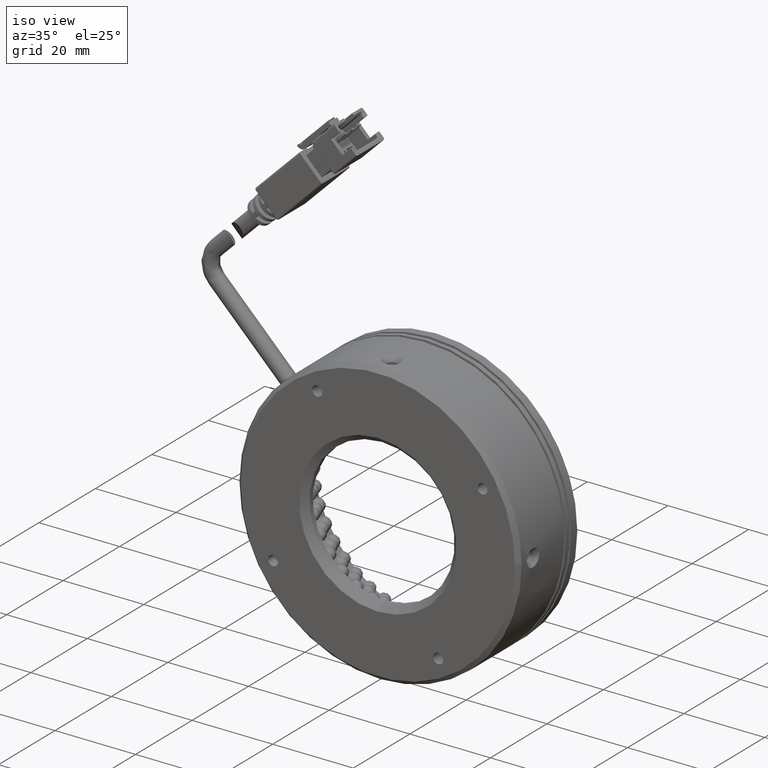
[diagram: clean part render]
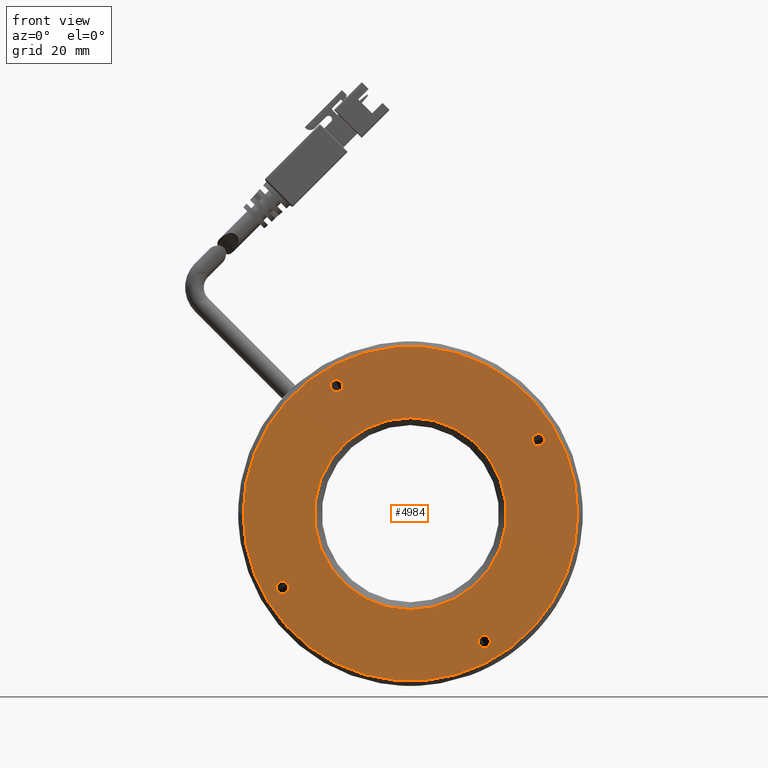
[diagram: tour spotlight — one face highlighted and labeled with its STEP entity id]
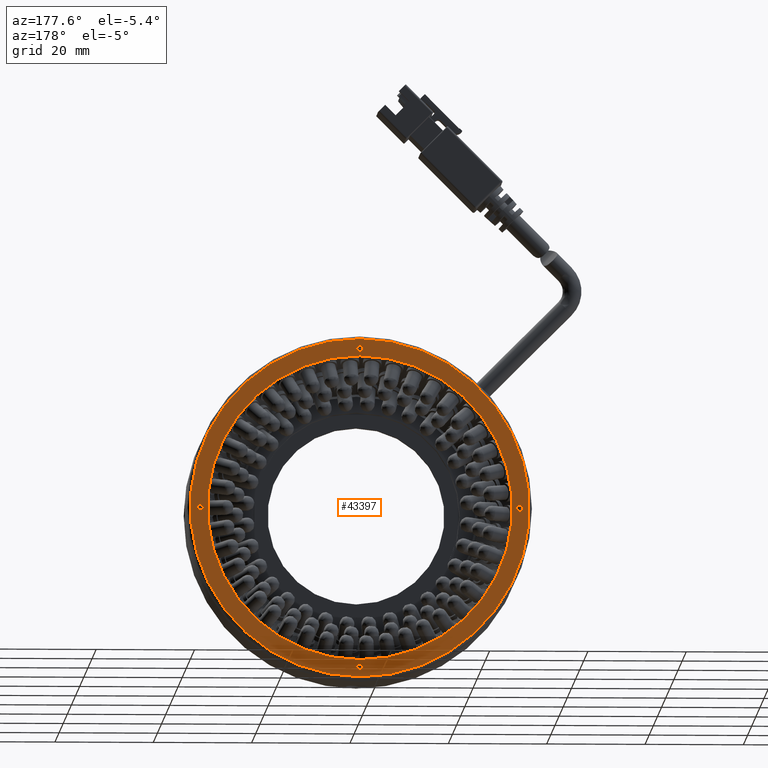
[diagram: tour spotlight — one face highlighted and labeled with its STEP entity id]
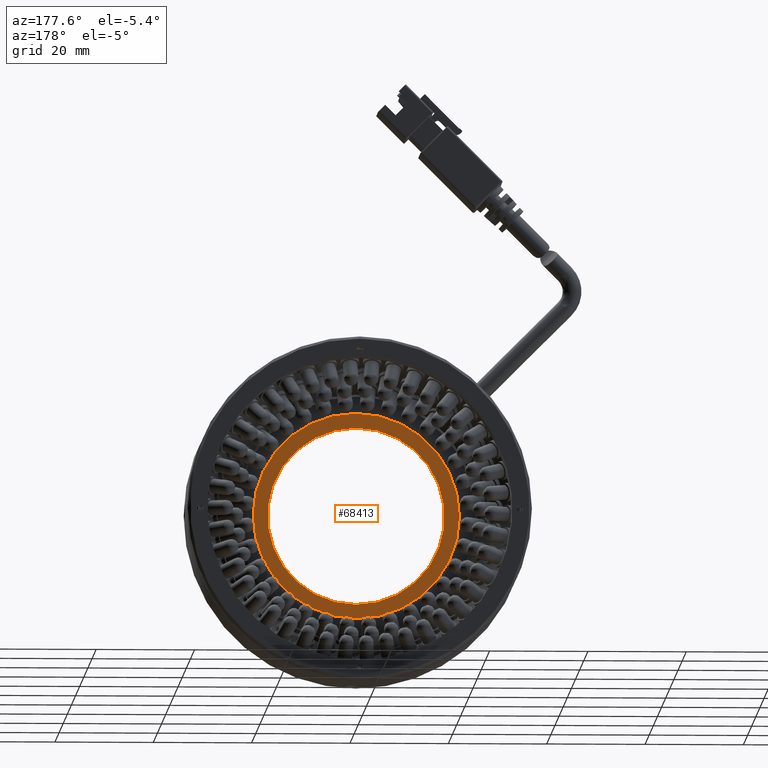
[diagram: tour spotlight — one face highlighted and labeled with its STEP entity id]
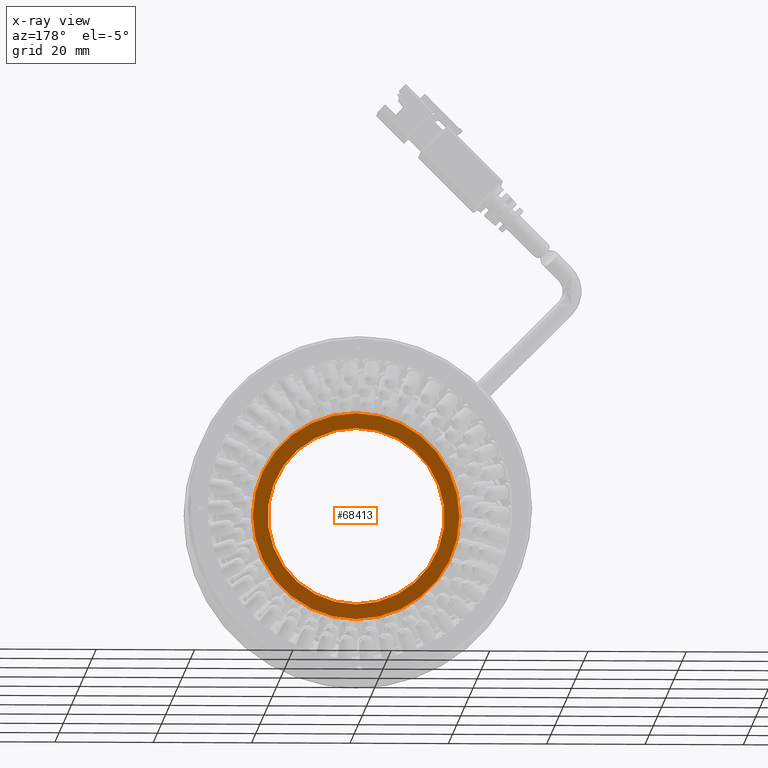
[diagram: x-ray of the same camera — body ghosted, this tour face saturated]
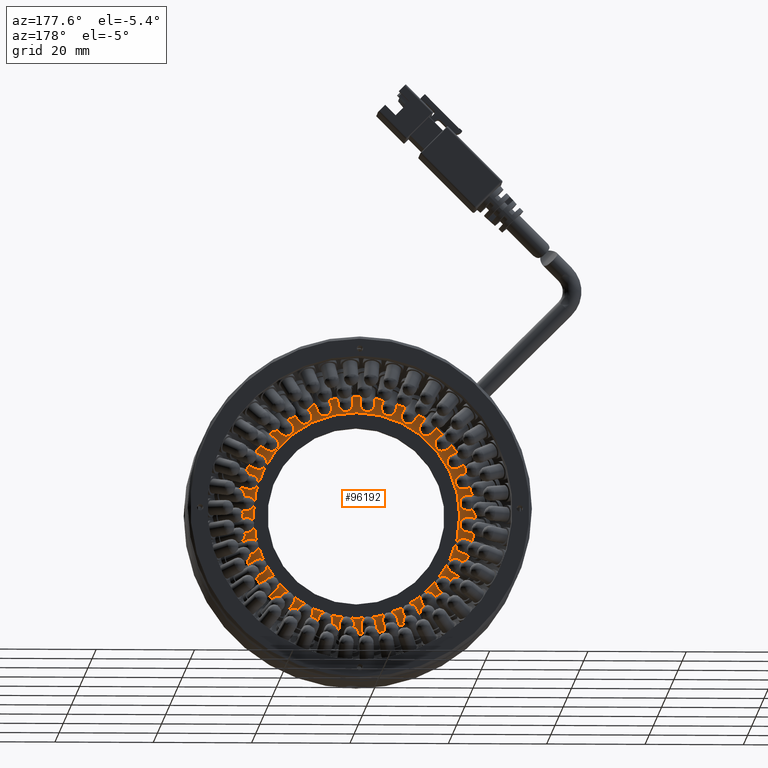
[diagram: tour spotlight — one face highlighted and labeled with its STEP entity id]
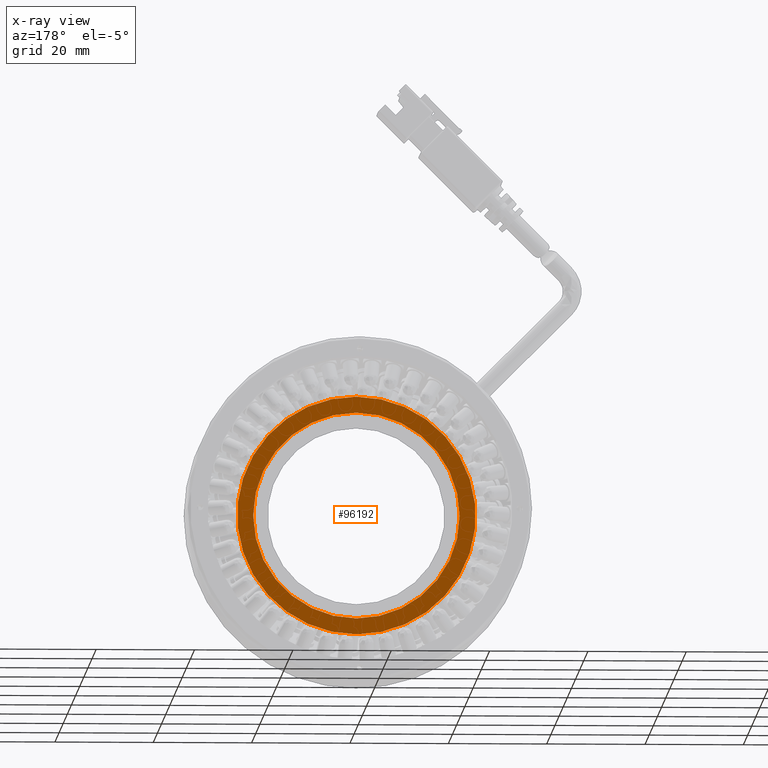
[diagram: x-ray of the same camera — body ghosted, this tour face saturated]
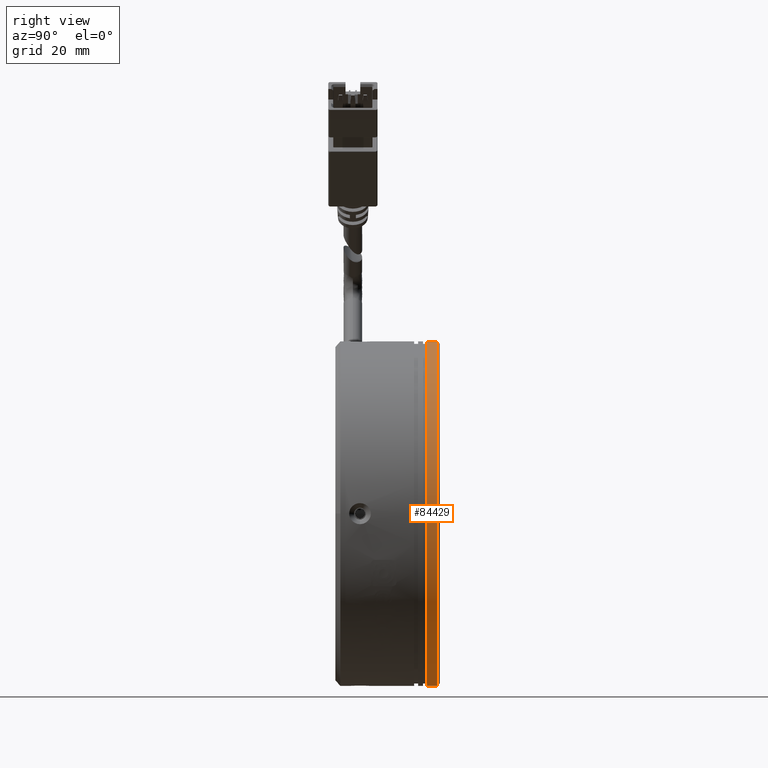
[diagram: tour spotlight — one face highlighted and labeled with its STEP entity id]
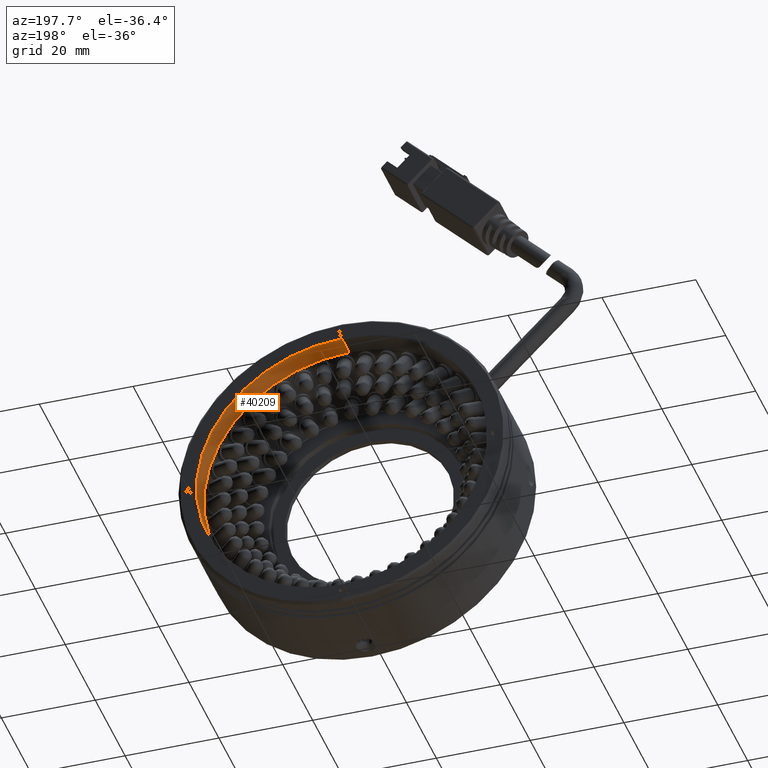
[diagram: tour spotlight — one face highlighted and labeled with its STEP entity id]
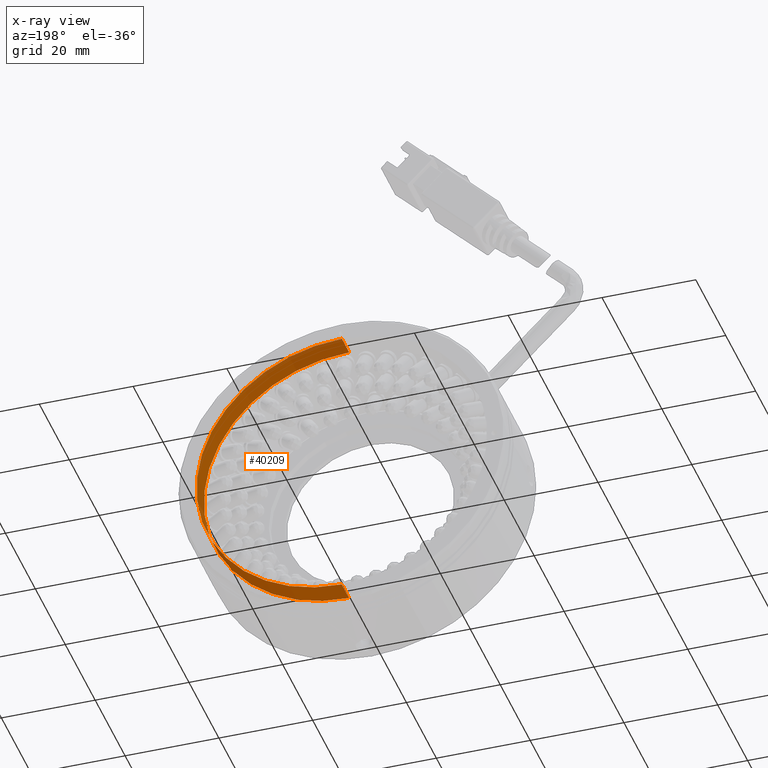
[diagram: x-ray of the same camera — body ghosted, this tour face saturated]
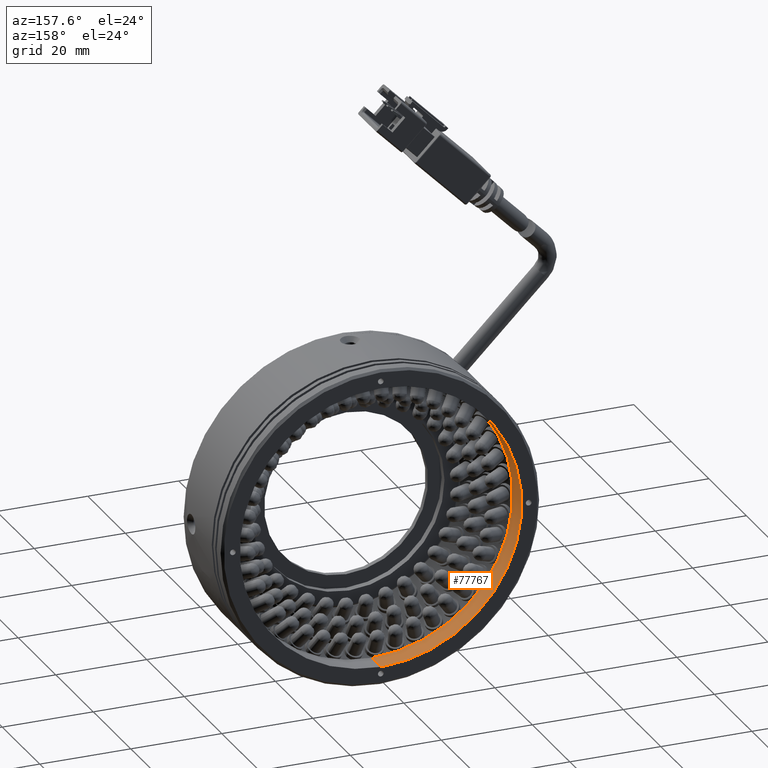
[diagram: tour spotlight — one face highlighted and labeled with its STEP entity id]
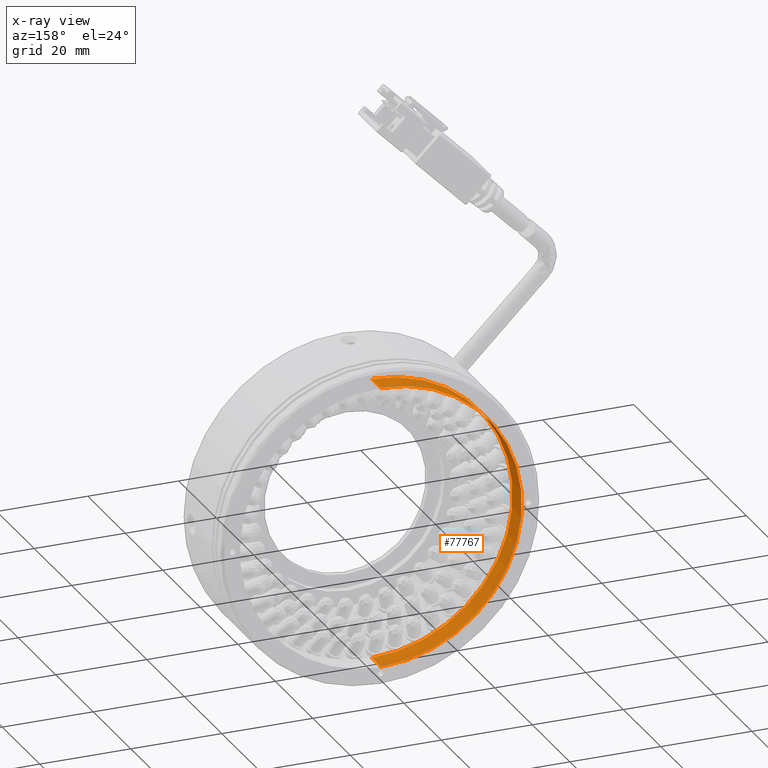
[diagram: x-ray of the same camera — body ghosted, this tour face saturated]
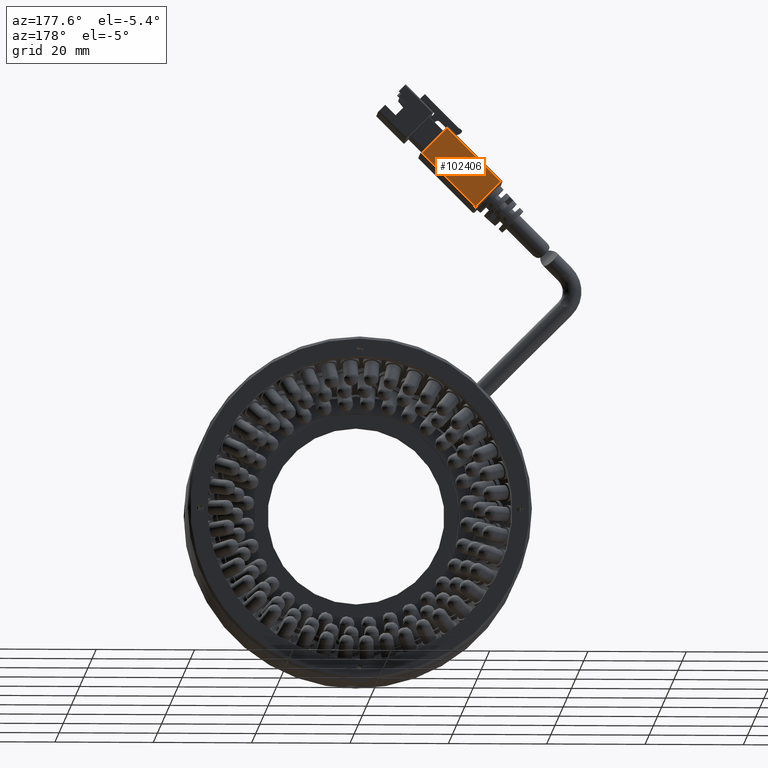
[diagram: tour spotlight — one face highlighted and labeled with its STEP entity id]
A machine part: a face-by-face anatomy tour. The part has 2275 B-rep faces; the first image is the clean iso view, then the 8 largest visible faces are spotlighted one at a time (largest first), each with its STEP entity span.

Face 1 — front view, entity #4984. In plain terms, the highlighted planar face has unit normal (0, 1, 0).
Definition (entity closure, byte-faithful):
#367 = DIRECTION ( 'NONE',  ( 0.0000000000000000000, 1.000000000000000000, 0.0000000000000000000 ) ) ;
#393 = AXIS2_PLACEMENT_3D ( 'NONE', #73693, #72542, #71734 ) ;
#1452 = CIRCLE ( 'NONE', #10676, 1.249999999999994200 ) ;
#1920 = ORIENTED_EDGE ( 'NONE', *, *, #40931, .F. ) ;
#3413 = VERTEX_POINT ( 'NONE', #66374 ) ;
#3608 = EDGE_CURVE ( 'NONE', #83155, #38420, #40416, .T. ) ;
#4984 = ADVANCED_FACE ( 'NONE', ( #56439, #77790, #99244, #35047, #13627, #101733 ), #35180, .F. ) ;
#5630 = DIRECTION ( 'NONE',  ( 0.0000000000000000000, -1.000000000000000000, 0.0000000000000000000 ) ) ;
#5923 = ORIENTED_EDGE ( 'NONE', *, *, #24697, .F. ) ;
#7388 = VERTEX_POINT ( 'NONE', #63766 ) ;
#8421 = AXIS2_PLACEMENT_3D ( 'NONE', #16765, #72929, #24836 ) ;
#8676 = VERTEX_POINT ( 'NONE', #90584 ) ;
#10533 = CARTESIAN_POINT ( 'NONE',  ( -22.22376356038446600, -26.73693679055957900, -39.08318759848835800 ) ) ;
#10676 = AXIS2_PLACEMENT_3D ( 'NONE', #10533, #66751, #18667 ) ;
#13627 = FACE_OUTER_BOUND ( 'NONE', #38674, .T. ) ;
#13849 = VERTEX_POINT ( 'NONE', #69585 ) ;
#15088 = VERTEX_POINT ( 'NONE', #35109 ) ;
#16110 = EDGE_CURVE ( 'NONE', #13849, #3413, #18190, .T. ) ;
#16765 = CARTESIAN_POINT ( 'NONE',  ( -37.22376356038467500, -26.73693679055958200, -13.10242548495533300 ) ) ;
#17733 = EDGE_LOOP ( 'NONE', ( #56339, #63841 ) ) ;
#18190 = CIRCLE ( 'NONE', #34743, 34.00000000000004300 ) ;
#18667 = DIRECTION ( 'NONE',  ( 0.0000000000000000000, 0.0000000000000000000, -1.000000000000000000 ) ) ;
#19959 = ORIENTED_EDGE ( 'NONE', *, *, #16110, .F. ) ;
#20927 = EDGE_CURVE ( 'NONE', #38813, #67836, #101662, .T. ) ;
#24697 = EDGE_CURVE ( 'NONE', #38420, #83155, #73603, .T. ) ;
#24836 = DIRECTION ( 'NONE',  ( 0.0000000000000000000, 0.0000000000000000000, -1.000000000000000000 ) ) ;
#26878 = EDGE_CURVE ( 'NONE', #92964, #15088, #54555, .T. ) ;
#27176 = ORIENTED_EDGE ( 'NONE', *, *, #82742, .F. ) ;
#28119 = EDGE_LOOP ( 'NONE', ( #51162, #5923 ) ) ;
#30036 = CARTESIAN_POINT ( 'NONE',  ( -37.22376356038467500, -26.73693679055958200, -13.10242548495533300 ) ) ;
#31199 = CARTESIAN_POINT ( 'NONE',  ( -63.20452567391775000, -26.73693679055957900, -28.10242548495545400 ) ) ;
#31885 = EDGE_CURVE ( 'NONE', #7388, #8676, #1452, .T. ) ;
#32946 = VERTEX_POINT ( 'NONE', #88738 ) ;
#34377 = DIRECTION ( 'NONE',  ( 0.0000000000000000000, -0.0000000000000000000, 1.000000000000000000 ) ) ;
#34473 = CARTESIAN_POINT ( 'NONE',  ( -55.22376356038467500, -26.73693679055958200, -13.10242548495533300 ) ) ;
#34743 = AXIS2_PLACEMENT_3D ( 'NONE', #89345, #89204, #88995 ) ;
#35047 = FACE_BOUND ( 'NONE', #17733, .T. ) ;
#35109 = CARTESIAN_POINT ( 'NONE',  ( -37.22376356038467500, -26.73693679055958200, -32.60242548495536100 ) ) ;
#35180 = PLANE ( 'NONE',  #76830 ) ;
#36111 = CARTESIAN_POINT ( 'NONE',  ( -52.22376356038507300, -26.73693679055957900, 12.87833662857758900 ) ) ;
#37275 = DIRECTION ( 'NONE',  ( -0.0000000000000000000, -1.000000000000000000, -0.0000000000000000000 ) ) ;
#37617 = ORIENTED_EDGE ( 'NONE', *, *, #52392, .F. ) ;
#38141 = DIRECTION ( 'NONE',  ( -1.000000000000000000, 0.0000000000000000000, 0.0000000000000000000 ) ) ;
#38420 = VERTEX_POINT ( 'NONE', #66078 ) ;
#38674 = EDGE_LOOP ( 'NONE', ( #19959, #70181 ) ) ;
#38714 = CARTESIAN_POINT ( 'NONE',  ( -22.22376356038446600, -26.73693679055957900, -39.08318759848835800 ) ) ;
#38813 = VERTEX_POINT ( 'NONE', #80460 ) ;
#38878 = CARTESIAN_POINT ( 'NONE',  ( -52.22376356038507300, -26.73693679055957900, 14.12833662857758400 ) ) ;
#39184 = VERTEX_POINT ( 'NONE', #38878 ) ;
#39200 = AXIS2_PLACEMENT_3D ( 'NONE', #93157, #44962, #101235 ) ;
#39285 = DIRECTION ( 'NONE',  ( 0.0000000000000000000, 0.0000000000000000000, -1.000000000000000000 ) ) ;
#39358 = CARTESIAN_POINT ( 'NONE',  ( -52.22376356038507300, -26.73693679055957900, 12.87833662857758900 ) ) ;
#40416 = CIRCLE ( 'NONE', #393, 1.249999999999994200 ) ;
#40931 = EDGE_CURVE ( 'NONE', #67836, #38813, #88096, .T. ) ;
#44146 = DIRECTION ( 'NONE',  ( 0.0000000000000000000, 0.0000000000000000000, -1.000000000000000000 ) ) ;
#44962 = DIRECTION ( 'NONE',  ( -0.0000000000000000000, -1.000000000000000000, -0.0000000000000000000 ) ) ;
#45963 = AXIS2_PLACEMENT_3D ( 'NONE', #39358, #95568, #47420 ) ;
#46739 = DIRECTION ( 'NONE',  ( 0.0000000000000000000, 0.0000000000000000000, -1.000000000000000000 ) ) ;
#47420 = DIRECTION ( 'NONE',  ( 0.0000000000000000000, 0.0000000000000000000, -1.000000000000000000 ) ) ;
#51162 = ORIENTED_EDGE ( 'NONE', *, *, #3608, .F. ) ;
#52392 = EDGE_CURVE ( 'NONE', #15088, #92964, #57443, .T. ) ;
#53838 = CARTESIAN_POINT ( 'NONE',  ( -37.22376356038467500, -26.73693679055958200, -13.10242548495533300 ) ) ;
#54555 = CIRCLE ( 'NONE', #102763, 19.50000000000002500 ) ;
#56026 = EDGE_CURVE ( 'NONE', #39184, #32946, #57539, .T. ) ;
#56339 = ORIENTED_EDGE ( 'NONE', *, *, #95933, .F. ) ;
#56439 = FACE_BOUND ( 'NONE', #68803, .T. ) ;
#57256 = AXIS2_PLACEMENT_3D ( 'NONE', #31199, #87428, #39285 ) ;
#57443 = CIRCLE ( 'NONE', #8421, 19.50000000000002500 ) ;
#57539 = CIRCLE ( 'NONE', #45963, 1.249999999999994200 ) ;
#60259 = ORIENTED_EDGE ( 'NONE', *, *, #26878, .F. ) ;
#61898 = DIRECTION ( 'NONE',  ( 0.0000000000000000000, 0.0000000000000000000, -1.000000000000000000 ) ) ;
#62980 = EDGE_LOOP ( 'NONE', ( #37617, #60259 ) ) ;
#63766 = CARTESIAN_POINT ( 'NONE',  ( -22.22376356038446600, -26.73693679055957900, -37.83318759848836500 ) ) ;
#63841 = ORIENTED_EDGE ( 'NONE', *, *, #56026, .F. ) ;
#66078 = CARTESIAN_POINT ( 'NONE',  ( -11.24300144685170000, -26.73693679055957900, 3.147574515044965400 ) ) ;
#66374 = CARTESIAN_POINT ( 'NONE',  ( -3.223763560384632000, -26.73693679055958200, -13.10242548495532900 ) ) ;
#66751 = DIRECTION ( 'NONE',  ( -0.0000000000000000000, -1.000000000000000000, -0.0000000000000000000 ) ) ;
#67836 = VERTEX_POINT ( 'NONE', #88274 ) ;
#68803 = EDGE_LOOP ( 'NONE', ( #96254, #1920 ) ) ;
#69585 = CARTESIAN_POINT ( 'NONE',  ( -71.22376356038472500, -26.73693679055958200, -13.10242548495533300 ) ) ;
#70181 = ORIENTED_EDGE ( 'NONE', *, *, #74240, .F. ) ;
#71734 = DIRECTION ( 'NONE',  ( 0.0000000000000000000, 0.0000000000000000000, -1.000000000000000000 ) ) ;
#72542 = DIRECTION ( 'NONE',  ( -0.0000000000000000000, -1.000000000000000000, -0.0000000000000000000 ) ) ;
#72929 = DIRECTION ( 'NONE',  ( 0.0000000000000000000, -1.000000000000000000, 0.0000000000000000000 ) ) ;
#73603 = CIRCLE ( 'NONE', #39200, 1.249999999999994200 ) ;
#73693 = CARTESIAN_POINT ( 'NONE',  ( -11.24300144685170000, -26.73693679055957900, 1.897574515044971000 ) ) ;
#74240 = EDGE_CURVE ( 'NONE', #3413, #13849, #83731, .T. ) ;
#76830 = AXIS2_PLACEMENT_3D ( 'NONE', #34473, #367, #34377 ) ;
#77790 = FACE_BOUND ( 'NONE', #102990, .T. ) ;
#80460 = CARTESIAN_POINT ( 'NONE',  ( -63.20452567391775000, -26.73693679055957900, -29.35242548495545000 ) ) ;
#82742 = EDGE_CURVE ( 'NONE', #8676, #7388, #103603, .T. ) ;
#82776 = AXIS2_PLACEMENT_3D ( 'NONE', #38714, #94892, #46739 ) ;
#83155 = VERTEX_POINT ( 'NONE', #93412 ) ;
#83200 = AXIS2_PLACEMENT_3D ( 'NONE', #36111, #92344, #44146 ) ;
#83731 = CIRCLE ( 'NONE', #98347, 34.00000000000004300 ) ;
#85361 = CIRCLE ( 'NONE', #83200, 1.249999999999994200 ) ;
#85378 = CARTESIAN_POINT ( 'NONE',  ( -63.20452567391775000, -26.73693679055957900, -28.10242548495545400 ) ) ;
#86260 = DIRECTION ( 'NONE',  ( 2.478176394252581700E-017, 1.000000000000000000, 0.0000000000000000000 ) ) ;
#87428 = DIRECTION ( 'NONE',  ( -0.0000000000000000000, -1.000000000000000000, -0.0000000000000000000 ) ) ;
#88096 = CIRCLE ( 'NONE', #57256, 1.249999999999994200 ) ;
#88274 = CARTESIAN_POINT ( 'NONE',  ( -63.20452567391775000, -26.73693679055957900, -26.85242548495546100 ) ) ;
#88738 = CARTESIAN_POINT ( 'NONE',  ( -52.22376356038507300, -26.73693679055957900, 11.62833662857759600 ) ) ;
#88995 = DIRECTION ( 'NONE',  ( -1.000000000000000000, 0.0000000000000000000, 0.0000000000000000000 ) ) ;
#89204 = DIRECTION ( 'NONE',  ( 2.478176394252581700E-017, 1.000000000000000000, 0.0000000000000000000 ) ) ;
#89345 = CARTESIAN_POINT ( 'NONE',  ( -37.22376356038467500, -26.73693679055958200, -13.10242548495533300 ) ) ;
#90059 = CARTESIAN_POINT ( 'NONE',  ( -37.22376356038467500, -26.73693679055958200, 6.397574515044687400 ) ) ;
#90584 = CARTESIAN_POINT ( 'NONE',  ( -22.22376356038446600, -26.73693679055957900, -40.33318759848835800 ) ) ;
#92344 = DIRECTION ( 'NONE',  ( -0.0000000000000000000, -1.000000000000000000, -0.0000000000000000000 ) ) ;
#92964 = VERTEX_POINT ( 'NONE', #90059 ) ;
#93157 = CARTESIAN_POINT ( 'NONE',  ( -11.24300144685170000, -26.73693679055957900, 1.897574515044971000 ) ) ;
#93412 = CARTESIAN_POINT ( 'NONE',  ( -11.24300144685170000, -26.73693679055957900, 0.6475745150449768700 ) ) ;
#93454 = DIRECTION ( 'NONE',  ( 0.0000000000000000000, 0.0000000000000000000, -1.000000000000000000 ) ) ;
#94892 = DIRECTION ( 'NONE',  ( -0.0000000000000000000, -1.000000000000000000, -0.0000000000000000000 ) ) ;
#95568 = DIRECTION ( 'NONE',  ( -0.0000000000000000000, -1.000000000000000000, -0.0000000000000000000 ) ) ;
#95933 = EDGE_CURVE ( 'NONE', #32946, #39184, #85361, .T. ) ;
#96254 = ORIENTED_EDGE ( 'NONE', *, *, #20927, .F. ) ;
#98347 = AXIS2_PLACEMENT_3D ( 'NONE', #30036, #86260, #38141 ) ;
#99244 = FACE_BOUND ( 'NONE', #28119, .T. ) ;
#100573 = AXIS2_PLACEMENT_3D ( 'NONE', #85378, #37275, #93454 ) ;
#101235 = DIRECTION ( 'NONE',  ( 0.0000000000000000000, 0.0000000000000000000, -1.000000000000000000 ) ) ;
#101662 = CIRCLE ( 'NONE', #100573, 1.249999999999994200 ) ;
#101733 = FACE_BOUND ( 'NONE', #62980, .T. ) ;
#102763 = AXIS2_PLACEMENT_3D ( 'NONE', #53838, #5630, #61898 ) ;
#102990 = EDGE_LOOP ( 'NONE', ( #27176, #103935 ) ) ;
#103603 = CIRCLE ( 'NONE', #82776, 1.249999999999994200 ) ;
#103935 = ORIENTED_EDGE ( 'NONE', *, *, #31885, .F. ) ;

Face 2 — auxiliary view, entity #43397. In plain terms, the highlighted planar face has unit normal (0, -1, 0).
Definition (entity closure, byte-faithful):
#296 = VERTEX_POINT ( 'NONE', #71676 ) ;
#1664 = CARTESIAN_POINT ( 'NONE',  ( -37.22376356038466100, -5.536936790559605200, -45.60242548495531900 ) ) ;
#1952 = CARTESIAN_POINT ( 'NONE',  ( -4.723763560384661300, -5.536936790559605200, -13.10242548495520700 ) ) ;
#2442 = DIRECTION ( 'NONE',  ( 0.0000000000000000000, 0.0000000000000000000, 1.000000000000000000 ) ) ;
#4128 = VERTEX_POINT ( 'NONE', #91681 ) ;
#5271 = CIRCLE ( 'NONE', #92686, 31.00000000000000000 ) ;
#6085 = CARTESIAN_POINT ( 'NONE',  ( -37.22376356038466100, -5.536936790559605200, 20.02257451504468100 ) ) ;
#7486 = CARTESIAN_POINT ( 'NONE',  ( -37.22376356038466100, -5.536936790559605200, 18.77257451504468100 ) ) ;
#7731 = DIRECTION ( 'NONE',  ( 0.0000000000000000000, -1.000000000000000000, 0.0000000000000000000 ) ) ;
#7828 = ORIENTED_EDGE ( 'NONE', *, *, #40810, .F. ) ;
#9807 = DIRECTION ( 'NONE',  ( 0.0000000000000000000, 0.0000000000000000000, 1.000000000000000000 ) ) ;
#10042 = DIRECTION ( 'NONE',  ( 0.0000000000000000000, 0.0000000000000000000, 1.000000000000000000 ) ) ;
#11380 = ORIENTED_EDGE ( 'NONE', *, *, #82562, .T. ) ;
#12684 = AXIS2_PLACEMENT_3D ( 'NONE', #36983, #93201, #45014 ) ;
#13256 = EDGE_CURVE ( 'NONE', #83629, #77313, #101349, .T. ) ;
#13744 = EDGE_CURVE ( 'NONE', #100727, #35449, #23287, .T. ) ;
#13925 = CARTESIAN_POINT ( 'NONE',  ( -37.22376356038466100, -5.536936790559604300, -13.10242548495532100 ) ) ;
#14630 = ORIENTED_EDGE ( 'NONE', *, *, #22679, .T. ) ;
#14667 = EDGE_CURVE ( 'NONE', #296, #18550, #37936, .T. ) ;
#15345 = VERTEX_POINT ( 'NONE', #7486 ) ;
#16510 = CARTESIAN_POINT ( 'NONE',  ( -69.72376356038466800, -5.536936790559605200, -13.72742548495566000 ) ) ;
#17472 = AXIS2_PLACEMENT_3D ( 'NONE', #20172, #76338, #28205 ) ;
#17613 = FACE_OUTER_BOUND ( 'NONE', #23286, .T. ) ;
#18375 = VERTEX_POINT ( 'NONE', #6085 ) ;
#18462 = DIRECTION ( 'NONE',  ( 0.0000000000000000000, -1.000000000000000000, 0.0000000000000000000 ) ) ;
#18550 = VERTEX_POINT ( 'NONE', #87608 ) ;
#20167 = FACE_BOUND ( 'NONE', #79139, .T. ) ;
#20172 = CARTESIAN_POINT ( 'NONE',  ( -37.22376356038466100, -5.536936790559607000, -13.10242548495532100 ) ) ;
#20293 = DIRECTION ( 'NONE',  ( 0.0000000000000000000, 0.0000000000000000000, 1.000000000000000000 ) ) ;
#20622 = DIRECTION ( 'NONE',  ( 0.0000000000000000000, -1.000000000000000000, 0.0000000000000000000 ) ) ;
#20990 = CARTESIAN_POINT ( 'NONE',  ( -4.723763560384661300, -5.536936790559605200, -13.10242548495520700 ) ) ;
#21062 = CARTESIAN_POINT ( 'NONE',  ( -37.22376356038466100, -5.536936790559607000, -13.10242548495532100 ) ) ;
#21568 = AXIS2_PLACEMENT_3D ( 'NONE', #21062, #77226, #29121 ) ;
#22076 = DIRECTION ( 'NONE',  ( 0.0000000000000000000, 0.0000000000000000000, -1.000000000000000000 ) ) ;
#22679 = EDGE_CURVE ( 'NONE', #4128, #47003, #5271, .T. ) ;
#23286 = EDGE_LOOP ( 'NONE', ( #7828, #71295 ) ) ;
#23287 = CIRCLE ( 'NONE', #53175, 0.6250000000000005600 ) ;
#24370 = DIRECTION ( 'NONE',  ( 0.0000000000000000000, 0.0000000000000000000, 1.000000000000000000 ) ) ;
#24443 = AXIS2_PLACEMENT_3D ( 'NONE', #26514, #25494, #24370 ) ;
#25494 = DIRECTION ( 'NONE',  ( 0.0000000000000000000, -1.000000000000000000, 0.0000000000000000000 ) ) ;
#25521 = AXIS2_PLACEMENT_3D ( 'NONE', #98852, #50642, #2442 ) ;
#26472 = DIRECTION ( 'NONE',  ( -0.0000000000000000000, -1.000000000000000000, -0.0000000000000000000 ) ) ;
#26514 = CARTESIAN_POINT ( 'NONE',  ( -37.22376356038466100, -5.536936790559605200, -45.60242548495531900 ) ) ;
#28205 = DIRECTION ( 'NONE',  ( 0.0000000000000000000, 0.0000000000000000000, -1.000000000000000000 ) ) ;
#28337 = CARTESIAN_POINT ( 'NONE',  ( -69.72376356038466800, -5.536936790559605200, -12.47742548495566000 ) ) ;
#28523 = EDGE_CURVE ( 'NONE', #81721, #70551, #46300, .T. ) ;
#29121 = DIRECTION ( 'NONE',  ( 0.0000000000000000000, 0.0000000000000000000, -1.000000000000000000 ) ) ;
#29607 = EDGE_CURVE ( 'NONE', #15345, #18375, #58663, .T. ) ;
#35449 = VERTEX_POINT ( 'NONE', #28337 ) ;
#36983 = CARTESIAN_POINT ( 'NONE',  ( -69.72376356038466800, -5.536936790559605200, -13.10242548495566000 ) ) ;
#37936 = CIRCLE ( 'NONE', #24443, 0.6250000000000005600 ) ;
#38456 = CIRCLE ( 'NONE', #25521, 0.6250000000000005600 ) ;
#40413 = CIRCLE ( 'NONE', #21568, 34.50000000000000700 ) ;
#40810 = EDGE_CURVE ( 'NONE', #70551, #81721, #40413, .T. ) ;
#43371 = CARTESIAN_POINT ( 'NONE',  ( -4.723763560384661300, -5.536936790559605200, -13.72742548495520700 ) ) ;
#43397 = ADVANCED_FACE ( 'NONE', ( #103125, #17613, #81743, #20167, #60359, #100647 ), #82442, .F. ) ;
#44025 = CIRCLE ( 'NONE', #49061, 31.00000000000000000 ) ;
#45014 = DIRECTION ( 'NONE',  ( 0.0000000000000000000, 0.0000000000000000000, 1.000000000000000000 ) ) ;
#46300 = CIRCLE ( 'NONE', #17472, 34.50000000000000700 ) ;
#47003 = VERTEX_POINT ( 'NONE', #77269 ) ;
#47352 = EDGE_CURVE ( 'NONE', #77313, #83629, #70025, .T. ) ;
#49061 = AXIS2_PLACEMENT_3D ( 'NONE', #13925, #70146, #22076 ) ;
#50642 = DIRECTION ( 'NONE',  ( 0.0000000000000000000, -1.000000000000000000, 0.0000000000000000000 ) ) ;
#53175 = AXIS2_PLACEMENT_3D ( 'NONE', #83887, #83762, #83513 ) ;
#55927 = CARTESIAN_POINT ( 'NONE',  ( -37.22376356038466100, -5.536936790559605200, 19.39757451504468100 ) ) ;
#57966 = DIRECTION ( 'NONE',  ( 0.0000000000000000000, -1.000000000000000000, 0.0000000000000000000 ) ) ;
#58233 = DIRECTION ( 'NONE',  ( 0.0000000000000000000, -1.000000000000000000, 0.0000000000000000000 ) ) ;
#58663 = CIRCLE ( 'NONE', #98453, 0.6250000000000005600 ) ;
#60359 = FACE_BOUND ( 'NONE', #99636, .T. ) ;
#61880 = CARTESIAN_POINT ( 'NONE',  ( -37.22376356038466100, -5.536936790559607000, -47.60242548495533300 ) ) ;
#63971 = DIRECTION ( 'NONE',  ( 0.0000000000000000000, 0.0000000000000000000, 1.000000000000000000 ) ) ;
#64098 = CIRCLE ( 'NONE', #102164, 0.6250000000000005600 ) ;
#64264 = AXIS2_PLACEMENT_3D ( 'NONE', #66565, #18462, #74641 ) ;
#66565 = CARTESIAN_POINT ( 'NONE',  ( -68.22376356038466800, -5.536936790559605200, -13.10242548495532100 ) ) ;
#67071 = EDGE_CURVE ( 'NONE', #47003, #4128, #44025, .T. ) ;
#67147 = CIRCLE ( 'NONE', #12684, 0.6250000000000005600 ) ;
#70025 = CIRCLE ( 'NONE', #95869, 0.6250000000000005600 ) ;
#70146 = DIRECTION ( 'NONE',  ( -0.0000000000000000000, -1.000000000000000000, -0.0000000000000000000 ) ) ;
#70551 = VERTEX_POINT ( 'NONE', #61880 ) ;
#71295 = ORIENTED_EDGE ( 'NONE', *, *, #28523, .F. ) ;
#71676 = CARTESIAN_POINT ( 'NONE',  ( -37.22376356038466100, -5.536936790559605200, -44.97742548495531900 ) ) ;
#74579 = CARTESIAN_POINT ( 'NONE',  ( -37.22376356038466100, -5.536936790559604300, -13.10242548495532100 ) ) ;
#74641 = DIRECTION ( 'NONE',  ( 0.0000000000000000000, -0.0000000000000000000, -1.000000000000000000 ) ) ;
#76066 = ORIENTED_EDGE ( 'NONE', *, *, #13744, .T. ) ;
#76338 = DIRECTION ( 'NONE',  ( 0.0000000000000000000, -1.000000000000000000, 0.0000000000000000000 ) ) ;
#76412 = EDGE_LOOP ( 'NONE', ( #90764, #14630 ) ) ;
#77063 = ORIENTED_EDGE ( 'NONE', *, *, #13256, .T. ) ;
#77226 = DIRECTION ( 'NONE',  ( 0.0000000000000000000, -1.000000000000000000, 0.0000000000000000000 ) ) ;
#77269 = CARTESIAN_POINT ( 'NONE',  ( -37.22376356038466100, -5.536936790559604300, -44.10242548495531900 ) ) ;
#77313 = VERTEX_POINT ( 'NONE', #93028 ) ;
#79139 = EDGE_LOOP ( 'NONE', ( #96863, #77063 ) ) ;
#80403 = CARTESIAN_POINT ( 'NONE',  ( -37.22376356038465400, -5.536936790559607000, 21.39757451504468800 ) ) ;
#81721 = VERTEX_POINT ( 'NONE', #80403 ) ;
#81743 = FACE_BOUND ( 'NONE', #92787, .T. ) ;
#82442 = PLANE ( 'NONE',  #64264 ) ;
#82562 = EDGE_CURVE ( 'NONE', #35449, #100727, #67147, .T. ) ;
#82723 = DIRECTION ( 'NONE',  ( 0.0000000000000000000, 0.0000000000000000000, -1.000000000000000000 ) ) ;
#83513 = DIRECTION ( 'NONE',  ( 0.0000000000000000000, 0.0000000000000000000, 1.000000000000000000 ) ) ;
#83629 = VERTEX_POINT ( 'NONE', #43371 ) ;
#83762 = DIRECTION ( 'NONE',  ( 0.0000000000000000000, -1.000000000000000000, 0.0000000000000000000 ) ) ;
#83887 = CARTESIAN_POINT ( 'NONE',  ( -69.72376356038466800, -5.536936790559605200, -13.10242548495566000 ) ) ;
#86618 = EDGE_LOOP ( 'NONE', ( #11380, #76066 ) ) ;
#86830 = EDGE_CURVE ( 'NONE', #18375, #15345, #38456, .T. ) ;
#87608 = CARTESIAN_POINT ( 'NONE',  ( -37.22376356038466100, -5.536936790559605200, -46.22742548495531900 ) ) ;
#88578 = ORIENTED_EDGE ( 'NONE', *, *, #29607, .T. ) ;
#90764 = ORIENTED_EDGE ( 'NONE', *, *, #67071, .T. ) ;
#90812 = ORIENTED_EDGE ( 'NONE', *, *, #86830, .T. ) ;
#91681 = CARTESIAN_POINT ( 'NONE',  ( -37.22376356038465400, -5.536936790559604300, 17.89757451504468100 ) ) ;
#91869 = EDGE_CURVE ( 'NONE', #18550, #296, #64098, .T. ) ;
#92686 = AXIS2_PLACEMENT_3D ( 'NONE', #74579, #26472, #82723 ) ;
#92787 = EDGE_LOOP ( 'NONE', ( #103181, #93014 ) ) ;
#93014 = ORIENTED_EDGE ( 'NONE', *, *, #91869, .T. ) ;
#93028 = CARTESIAN_POINT ( 'NONE',  ( -4.723763560384661300, -5.536936790559605200, -12.47742548495520700 ) ) ;
#93201 = DIRECTION ( 'NONE',  ( 0.0000000000000000000, -1.000000000000000000, 0.0000000000000000000 ) ) ;
#93528 = AXIS2_PLACEMENT_3D ( 'NONE', #20990, #20622, #20293 ) ;
#95869 = AXIS2_PLACEMENT_3D ( 'NONE', #1952, #58233, #10042 ) ;
#96863 = ORIENTED_EDGE ( 'NONE', *, *, #47352, .T. ) ;
#98453 = AXIS2_PLACEMENT_3D ( 'NONE', #55927, #7731, #63971 ) ;
#98852 = CARTESIAN_POINT ( 'NONE',  ( -37.22376356038466100, -5.536936790559605200, 19.39757451504468100 ) ) ;
#99636 = EDGE_LOOP ( 'NONE', ( #90812, #88578 ) ) ;
#100647 = FACE_BOUND ( 'NONE', #86618, .T. ) ;
#100727 = VERTEX_POINT ( 'NONE', #16510 ) ;
#101349 = CIRCLE ( 'NONE', #93528, 0.6250000000000005600 ) ;
#102164 = AXIS2_PLACEMENT_3D ( 'NONE', #1664, #57966, #9807 ) ;
#103125 = FACE_BOUND ( 'NONE', #76412, .T. ) ;
#103181 = ORIENTED_EDGE ( 'NONE', *, *, #14667, .T. ) ;

Face 3 — auxiliary view, entity #68413. An x-ray twin of the same camera follows (body ghosted, this face saturated) — the face is partly hidden behind the body. In plain terms, the highlighted planar face has unit normal (0, -1, 0).
Definition (entity closure, byte-faithful):
#1373 = CIRCLE ( 'NONE', #30547, 20.99999999999999600 ) ;
#4656 = DIRECTION ( 'NONE',  ( -0.0000000000000000000, -1.000000000000000000, -0.0000000000000000000 ) ) ;
#7632 = CARTESIAN_POINT ( 'NONE',  ( -58.22376356038467500, -24.03693679055957900, -13.10242548495533300 ) ) ;
#10169 = CARTESIAN_POINT ( 'NONE',  ( -37.22376356038467500, -24.03693679055957900, -31.10242548495533700 ) ) ;
#15740 = DIRECTION ( 'NONE',  ( 0.0000000000000000000, -0.0000000000000000000, -1.000000000000000000 ) ) ;
#16138 = CIRCLE ( 'NONE', #63785, 18.00000000000000400 ) ;
#16591 = VERTEX_POINT ( 'NONE', #99866 ) ;
#20910 = CARTESIAN_POINT ( 'NONE',  ( -37.22376356038467500, -24.03693679055957900, -13.10242548495533300 ) ) ;
#25759 = EDGE_CURVE ( 'NONE', #34692, #68406, #1373, .T. ) ;
#26092 = CARTESIAN_POINT ( 'NONE',  ( -37.22376356038467500, -24.03693679055957900, -13.10242548495533300 ) ) ;
#26801 = CARTESIAN_POINT ( 'NONE',  ( -37.22376356038467500, -24.03693679055957900, -13.10242548495533300 ) ) ;
#27196 = VERTEX_POINT ( 'NONE', #10169 ) ;
#28975 = DIRECTION ( 'NONE',  ( 0.0000000000000000000, 0.0000000000000000000, -1.000000000000000000 ) ) ;
#30547 = AXIS2_PLACEMENT_3D ( 'NONE', #52828, #4656, #60937 ) ;
#34189 = DIRECTION ( 'NONE',  ( 0.0000000000000000000, 0.0000000000000000000, -1.000000000000000000 ) ) ;
#34692 = VERTEX_POINT ( 'NONE', #48151 ) ;
#34902 = DIRECTION ( 'NONE',  ( 0.0000000000000000000, 0.0000000000000000000, -1.000000000000000000 ) ) ;
#37631 = ORIENTED_EDGE ( 'NONE', *, *, #95371, .F. ) ;
#42766 = AXIS2_PLACEMENT_3D ( 'NONE', #20910, #77082, #28975 ) ;
#44429 = ORIENTED_EDGE ( 'NONE', *, *, #84993, .T. ) ;
#48151 = CARTESIAN_POINT ( 'NONE',  ( -37.22376356038467500, -24.03693679055957900, 7.897574515044664300 ) ) ;
#52828 = CARTESIAN_POINT ( 'NONE',  ( -37.22376356038467500, -24.03693679055957900, -13.10242548495533300 ) ) ;
#53216 = EDGE_LOOP ( 'NONE', ( #68053, #44429 ) ) ;
#53466 = AXIS2_PLACEMENT_3D ( 'NONE', #26801, #83056, #34902 ) ;
#54943 = ORIENTED_EDGE ( 'NONE', *, *, #25759, .F. ) ;
#55984 = AXIS2_PLACEMENT_3D ( 'NONE', #7632, #63858, #15740 ) ;
#59481 = EDGE_LOOP ( 'NONE', ( #37631, #54943 ) ) ;
#60937 = DIRECTION ( 'NONE',  ( 0.0000000000000000000, 0.0000000000000000000, -1.000000000000000000 ) ) ;
#62253 = EDGE_CURVE ( 'NONE', #27196, #16591, #16138, .T. ) ;
#63785 = AXIS2_PLACEMENT_3D ( 'NONE', #26092, #82347, #34189 ) ;
#63858 = DIRECTION ( 'NONE',  ( 0.0000000000000000000, -1.000000000000000000, 0.0000000000000000000 ) ) ;
#68053 = ORIENTED_EDGE ( 'NONE', *, *, #62253, .T. ) ;
#68406 = VERTEX_POINT ( 'NONE', #79368 ) ;
#68413 = ADVANCED_FACE ( 'NONE', ( #71978, #95925 ), #103614, .F. ) ;
#71978 = FACE_BOUND ( 'NONE', #53216, .T. ) ;
#74303 = CIRCLE ( 'NONE', #53466, 20.99999999999999600 ) ;
#77082 = DIRECTION ( 'NONE',  ( -0.0000000000000000000, -1.000000000000000000, -0.0000000000000000000 ) ) ;
#79368 = CARTESIAN_POINT ( 'NONE',  ( -37.22376356038467500, -24.03693679055957900, -34.10242548495533300 ) ) ;
#82347 = DIRECTION ( 'NONE',  ( -0.0000000000000000000, -1.000000000000000000, -0.0000000000000000000 ) ) ;
#83056 = DIRECTION ( 'NONE',  ( -0.0000000000000000000, -1.000000000000000000, -0.0000000000000000000 ) ) ;
#84993 = EDGE_CURVE ( 'NONE', #16591, #27196, #94774, .T. ) ;
#94774 = CIRCLE ( 'NONE', #42766, 18.00000000000000400 ) ;
#95371 = EDGE_CURVE ( 'NONE', #68406, #34692, #74303, .T. ) ;
#95925 = FACE_OUTER_BOUND ( 'NONE', #59481, .T. ) ;
#99866 = CARTESIAN_POINT ( 'NONE',  ( -37.22376356038467500, -24.03693679055957900, 4.897574515044668800 ) ) ;
#103614 = PLANE ( 'NONE',  #55984 ) ;

Face 4 — auxiliary view, entity #96192. An x-ray twin of the same camera follows (body ghosted, this face saturated) — the face is partly hidden behind the body. In plain terms, the highlighted planar face has unit normal (0, -1, 0).
Definition (entity closure, byte-faithful):
#2179 = CIRCLE ( 'NONE', #96604, 20.99999999999999600 ) ;
#2373 = DIRECTION ( 'NONE',  ( 0.0000000000000000000, 0.0000000000000000000, -1.000000000000000000 ) ) ;
#6038 = AXIS2_PLACEMENT_3D ( 'NONE', #70028, #21956, #78136 ) ;
#7181 = DIRECTION ( 'NONE',  ( 0.0000000000000000000, -1.000000000000000000, 0.0000000000000000000 ) ) ;
#8287 = VERTEX_POINT ( 'NONE', #50397 ) ;
#8328 = VERTEX_POINT ( 'NONE', #43667 ) ;
#11533 = ORIENTED_EDGE ( 'NONE', *, *, #99139, .F. ) ;
#12985 = VERTEX_POINT ( 'NONE', #66495 ) ;
#17062 = DIRECTION ( 'NONE',  ( 0.0000000000000000000, -1.000000000000000000, 0.0000000000000000000 ) ) ;
#19847 = FACE_BOUND ( 'NONE', #50484, .T. ) ;
#21956 = DIRECTION ( 'NONE',  ( -0.0000000000000000000, -1.000000000000000000, -0.0000000000000000000 ) ) ;
#32856 = EDGE_CURVE ( 'NONE', #12985, #8328, #99212, .T. ) ;
#32857 = PLANE ( 'NONE',  #73170 ) ;
#38693 = FACE_OUTER_BOUND ( 'NONE', #97706, .T. ) ;
#39461 = CIRCLE ( 'NONE', #6038, 20.99999999999999600 ) ;
#41798 = ORIENTED_EDGE ( 'NONE', *, *, #90863, .T. ) ;
#43667 = CARTESIAN_POINT ( 'NONE',  ( -37.22376356038467500, -22.53693679055957600, -37.35242548495534700 ) ) ;
#44740 = DIRECTION ( 'NONE',  ( -0.0000000000000000000, -1.000000000000000000, -0.0000000000000000000 ) ) ;
#50397 = CARTESIAN_POINT ( 'NONE',  ( -37.22376356038467500, -22.53693679055957600, 7.897574515044664300 ) ) ;
#50484 = EDGE_LOOP ( 'NONE', ( #80545, #41798 ) ) ;
#50573 = DIRECTION ( 'NONE',  ( 0.0000000000000000000, -1.000000000000000000, 0.0000000000000000000 ) ) ;
#55055 = EDGE_CURVE ( 'NONE', #91557, #8287, #39461, .T. ) ;
#55363 = CARTESIAN_POINT ( 'NONE',  ( -37.22376356038467500, -22.53693679055957600, -13.10242548495533300 ) ) ;
#59400 = AXIS2_PLACEMENT_3D ( 'NONE', #55363, #7181, #63409 ) ;
#63409 = DIRECTION ( 'NONE',  ( 0.0000000000000000000, 0.0000000000000000000, -1.000000000000000000 ) ) ;
#64327 = ORIENTED_EDGE ( 'NONE', *, *, #32856, .F. ) ;
#65120 = CARTESIAN_POINT ( 'NONE',  ( -62.47376356038459000, -22.53693679055957600, -13.10242548495533300 ) ) ;
#66495 = CARTESIAN_POINT ( 'NONE',  ( -37.22376356038467500, -22.53693679055957600, 11.14757451504467800 ) ) ;
#69584 = CARTESIAN_POINT ( 'NONE',  ( -37.22376356038467500, -22.53693679055957600, -34.10242548495533300 ) ) ;
#70028 = CARTESIAN_POINT ( 'NONE',  ( -37.22376356038467500, -22.53693679055957600, -13.10242548495533300 ) ) ;
#73170 = AXIS2_PLACEMENT_3D ( 'NONE', #65120, #17062, #73210 ) ;
#73210 = DIRECTION ( 'NONE',  ( 0.0000000000000000000, -0.0000000000000000000, -1.000000000000000000 ) ) ;
#78136 = DIRECTION ( 'NONE',  ( 0.0000000000000000000, 0.0000000000000000000, -1.000000000000000000 ) ) ;
#80319 = AXIS2_PLACEMENT_3D ( 'NONE', #98764, #50573, #2373 ) ;
#80545 = ORIENTED_EDGE ( 'NONE', *, *, #55055, .T. ) ;
#90863 = EDGE_CURVE ( 'NONE', #8287, #91557, #2179, .T. ) ;
#91557 = VERTEX_POINT ( 'NONE', #69584 ) ;
#92933 = CARTESIAN_POINT ( 'NONE',  ( -37.22376356038467500, -22.53693679055957600, -13.10242548495533300 ) ) ;
#96192 = ADVANCED_FACE ( 'NONE', ( #19847, #38693 ), #32857, .F. ) ;
#96604 = AXIS2_PLACEMENT_3D ( 'NONE', #92933, #44740, #101027 ) ;
#97706 = EDGE_LOOP ( 'NONE', ( #11533, #64327 ) ) ;
#98764 = CARTESIAN_POINT ( 'NONE',  ( -37.22376356038467500, -22.53693679055957600, -13.10242548495533300 ) ) ;
#99139 = EDGE_CURVE ( 'NONE', #8328, #12985, #99984, .T. ) ;
#99212 = CIRCLE ( 'NONE', #59400, 24.25000000000001400 ) ;
#99984 = CIRCLE ( 'NONE', #80319, 24.25000000000001400 ) ;
#101027 = DIRECTION ( 'NONE',  ( 0.0000000000000000000, 0.0000000000000000000, -1.000000000000000000 ) ) ;

Face 5 — right view, entity #84429. In plain terms, the highlighted cylindrical surface (partial cylindrical patch) has radius 35 mm, axis along (-0, -1, -0).
Definition (entity closure, byte-faithful):
#8102 = AXIS2_PLACEMENT_3D ( 'NONE', #94506, #46342, #102602 ) ;
#9040 = EDGE_LOOP ( 'NONE', ( #75323, #41714, #13716, #14379 ) ) ;
#10325 = CARTESIAN_POINT ( 'NONE',  ( -37.22376356038465400, -6.036936790559598100, 21.89757451504468500 ) ) ;
#11154 = CARTESIAN_POINT ( 'NONE',  ( -37.22376356038465400, -10.10550973775694800, 21.89757451504468500 ) ) ;
#13716 = ORIENTED_EDGE ( 'NONE', *, *, #32188, .T. ) ;
#14379 = ORIENTED_EDGE ( 'NONE', *, *, #14901, .F. ) ;
#14901 = EDGE_CURVE ( 'NONE', #29475, #16055, #37761, .T. ) ;
#16055 = VERTEX_POINT ( 'NONE', #30666 ) ;
#20677 = DIRECTION ( 'NONE',  ( 0.0000000000000000000, 0.0000000000000000000, -1.000000000000000000 ) ) ;
#21715 = VERTEX_POINT ( 'NONE', #51980 ) ;
#23131 = VECTOR ( 'NONE', #67372, 1000.000000000000000 ) ;
#28043 = DIRECTION ( 'NONE',  ( -0.0000000000000000000, -1.000000000000000000, -0.0000000000000000000 ) ) ;
#29242 = AXIS2_PLACEMENT_3D ( 'NONE', #84634, #28043, #20677 ) ;
#29475 = VERTEX_POINT ( 'NONE', #38405 ) ;
#30666 = CARTESIAN_POINT ( 'NONE',  ( -37.22376356038466100, -8.136936790559603900, -48.10242548495532600 ) ) ;
#32188 = EDGE_CURVE ( 'NONE', #21715, #16055, #90697, .T. ) ;
#36305 = AXIS2_PLACEMENT_3D ( 'NONE', #95596, #47450, #103681 ) ;
#37761 = LINE ( 'NONE', #65284, #80490 ) ;
#38405 = CARTESIAN_POINT ( 'NONE',  ( -37.22376356038466100, -6.036936790559598100, -48.10242548495532600 ) ) ;
#41714 = ORIENTED_EDGE ( 'NONE', *, *, #72939, .T. ) ;
#46342 = DIRECTION ( 'NONE',  ( 0.0000000000000000000, 1.000000000000000000, 0.0000000000000000000 ) ) ;
#47450 = DIRECTION ( 'NONE',  ( -0.0000000000000000000, -1.000000000000000000, -0.0000000000000000000 ) ) ;
#51980 = CARTESIAN_POINT ( 'NONE',  ( -37.22376356038465400, -8.136936790559603900, 21.89757451504468500 ) ) ;
#62594 = EDGE_CURVE ( 'NONE', #29475, #98140, #67626, .T. ) ;
#65070 = DIRECTION ( 'NONE',  ( -0.0000000000000000000, -1.000000000000000000, -0.0000000000000000000 ) ) ;
#65284 = CARTESIAN_POINT ( 'NONE',  ( -37.22376356038466100, -10.10550973775694800, -48.10242548495532600 ) ) ;
#67372 = DIRECTION ( 'NONE',  ( -0.0000000000000000000, -1.000000000000000000, -0.0000000000000000000 ) ) ;
#67626 = CIRCLE ( 'NONE', #36305, 35.00000000000000000 ) ;
#72939 = EDGE_CURVE ( 'NONE', #98140, #21715, #84770, .T. ) ;
#75323 = ORIENTED_EDGE ( 'NONE', *, *, #62594, .T. ) ;
#79849 = FACE_OUTER_BOUND ( 'NONE', #9040, .T. ) ;
#80490 = VECTOR ( 'NONE', #65070, 1000.000000000000000 ) ;
#84429 = ADVANCED_FACE ( 'NONE', ( #79849 ), #91162, .T. ) ;
#84634 = CARTESIAN_POINT ( 'NONE',  ( -37.22376356038466100, -10.10550973775694800, -13.10242548495532100 ) ) ;
#84770 = LINE ( 'NONE', #11154, #23131 ) ;
#90697 = CIRCLE ( 'NONE', #8102, 35.00000000000000000 ) ;
#91162 = CYLINDRICAL_SURFACE ( 'NONE', #29242, 35.00000000000000000 ) ;
#94506 = CARTESIAN_POINT ( 'NONE',  ( -37.22376356038466100, -8.136936790559603900, -13.10242548495532100 ) ) ;
#95596 = CARTESIAN_POINT ( 'NONE',  ( -37.22376356038466100, -6.036936790559598100, -13.10242548495532100 ) ) ;
#98140 = VERTEX_POINT ( 'NONE', #10325 ) ;
#102602 = DIRECTION ( 'NONE',  ( 0.0000000000000000000, 0.0000000000000000000, -1.000000000000000000 ) ) ;
#103681 = DIRECTION ( 'NONE',  ( 0.0000000000000000000, 0.0000000000000000000, -1.000000000000000000 ) ) ;

Face 6 — auxiliary view, entity #40209. An x-ray twin of the same camera follows (body ghosted, this face saturated) — the face is partly hidden behind the body. In plain terms, the highlighted cylindrical surface (partial cylindrical patch) has radius 31 mm, axis along (-0, -1, -0).
Definition (entity closure, byte-faithful):
#4128 = VERTEX_POINT ( 'NONE', #91681 ) ;
#12028 = ORIENTED_EDGE ( 'NONE', *, *, #47536, .T. ) ;
#13925 = CARTESIAN_POINT ( 'NONE',  ( -37.22376356038466100, -5.536936790559604300, -13.10242548495532100 ) ) ;
#16695 = CARTESIAN_POINT ( 'NONE',  ( -37.22376356038466100, -10.43693679055960500, -44.10242548495531900 ) ) ;
#17886 = VECTOR ( 'NONE', #82901, 1000.000000000000000 ) ;
#21203 = AXIS2_PLACEMENT_3D ( 'NONE', #39494, #95706, #47564 ) ;
#22076 = DIRECTION ( 'NONE',  ( 0.0000000000000000000, 0.0000000000000000000, -1.000000000000000000 ) ) ;
#26002 = LINE ( 'NONE', #75761, #87646 ) ;
#26170 = FACE_OUTER_BOUND ( 'NONE', #62399, .T. ) ;
#26658 = CARTESIAN_POINT ( 'NONE',  ( -37.22376356038465400, -10.10550973775694800, 17.89757451504468100 ) ) ;
#36876 = CIRCLE ( 'NONE', #21203, 31.00000000000000000 ) ;
#39217 = DIRECTION ( 'NONE',  ( 0.0000000000000000000, 0.0000000000000000000, -1.000000000000000000 ) ) ;
#39494 = CARTESIAN_POINT ( 'NONE',  ( -37.22376356038466100, -10.43693679055960500, -13.10242548495532100 ) ) ;
#40209 = ADVANCED_FACE ( 'NONE', ( #26170 ), #101642, .F. ) ;
#40284 = VERTEX_POINT ( 'NONE', #16695 ) ;
#43084 = DIRECTION ( 'NONE',  ( -0.0000000000000000000, -1.000000000000000000, -0.0000000000000000000 ) ) ;
#44025 = CIRCLE ( 'NONE', #49061, 31.00000000000000000 ) ;
#46919 = CARTESIAN_POINT ( 'NONE',  ( -37.22376356038466100, -10.10550973775694800, -13.10242548495532100 ) ) ;
#47003 = VERTEX_POINT ( 'NONE', #77269 ) ;
#47536 = EDGE_CURVE ( 'NONE', #47003, #40284, #26002, .T. ) ;
#47564 = DIRECTION ( 'NONE',  ( 0.0000000000000000000, 0.0000000000000000000, -1.000000000000000000 ) ) ;
#49061 = AXIS2_PLACEMENT_3D ( 'NONE', #13925, #70146, #22076 ) ;
#58103 = LINE ( 'NONE', #26658, #17886 ) ;
#60161 = ORIENTED_EDGE ( 'NONE', *, *, #80634, .F. ) ;
#61670 = ORIENTED_EDGE ( 'NONE', *, *, #67071, .F. ) ;
#62399 = EDGE_LOOP ( 'NONE', ( #60161, #61670, #12028, #93489 ) ) ;
#67071 = EDGE_CURVE ( 'NONE', #47003, #4128, #44025, .T. ) ;
#70146 = DIRECTION ( 'NONE',  ( -0.0000000000000000000, -1.000000000000000000, -0.0000000000000000000 ) ) ;
#75761 = CARTESIAN_POINT ( 'NONE',  ( -37.22376356038466100, -10.10550973775694800, -44.10242548495531900 ) ) ;
#77040 = VERTEX_POINT ( 'NONE', #96558 ) ;
#77269 = CARTESIAN_POINT ( 'NONE',  ( -37.22376356038466100, -5.536936790559604300, -44.10242548495531900 ) ) ;
#80634 = EDGE_CURVE ( 'NONE', #4128, #77040, #58103, .T. ) ;
#82901 = DIRECTION ( 'NONE',  ( -0.0000000000000000000, -1.000000000000000000, -0.0000000000000000000 ) ) ;
#85427 = AXIS2_PLACEMENT_3D ( 'NONE', #46919, #103166, #39217 ) ;
#87646 = VECTOR ( 'NONE', #43084, 1000.000000000000000 ) ;
#91681 = CARTESIAN_POINT ( 'NONE',  ( -37.22376356038465400, -5.536936790559604300, 17.89757451504468100 ) ) ;
#93489 = ORIENTED_EDGE ( 'NONE', *, *, #100009, .T. ) ;
#95706 = DIRECTION ( 'NONE',  ( -0.0000000000000000000, -1.000000000000000000, -0.0000000000000000000 ) ) ;
#96558 = CARTESIAN_POINT ( 'NONE',  ( -37.22376356038465400, -10.43693679055960500, 17.89757451504468100 ) ) ;
#100009 = EDGE_CURVE ( 'NONE', #40284, #77040, #36876, .T. ) ;
#101642 = CYLINDRICAL_SURFACE ( 'NONE', #85427, 31.00000000000000000 ) ;
#103166 = DIRECTION ( 'NONE',  ( -0.0000000000000000000, -1.000000000000000000, -0.0000000000000000000 ) ) ;

Face 7 — auxiliary view, entity #77767. An x-ray twin of the same camera follows (body ghosted, this face saturated) — the face is partly hidden behind the body. In plain terms, the highlighted cylindrical surface (partial cylindrical patch) has radius 31 mm, axis along (-0, -1, -0).
Definition (entity closure, byte-faithful):
#2925 = FACE_OUTER_BOUND ( 'NONE', #59404, .T. ) ;
#3976 = ORIENTED_EDGE ( 'NONE', *, *, #47536, .F. ) ;
#4128 = VERTEX_POINT ( 'NONE', #91681 ) ;
#5271 = CIRCLE ( 'NONE', #92686, 31.00000000000000000 ) ;
#13424 = DIRECTION ( 'NONE',  ( 0.0000000000000000000, 0.0000000000000000000, -1.000000000000000000 ) ) ;
#14228 = CYLINDRICAL_SURFACE ( 'NONE', #23548, 31.00000000000000000 ) ;
#16695 = CARTESIAN_POINT ( 'NONE',  ( -37.22376356038466100, -10.43693679055960500, -44.10242548495531900 ) ) ;
#17886 = VECTOR ( 'NONE', #82901, 1000.000000000000000 ) ;
#22165 = AXIS2_PLACEMENT_3D ( 'NONE', #38213, #94406, #46245 ) ;
#22679 = EDGE_CURVE ( 'NONE', #4128, #47003, #5271, .T. ) ;
#23548 = AXIS2_PLACEMENT_3D ( 'NONE', #77417, #74577, #13424 ) ;
#26002 = LINE ( 'NONE', #75761, #87646 ) ;
#26472 = DIRECTION ( 'NONE',  ( -0.0000000000000000000, -1.000000000000000000, -0.0000000000000000000 ) ) ;
#26658 = CARTESIAN_POINT ( 'NONE',  ( -37.22376356038465400, -10.10550973775694800, 17.89757451504468100 ) ) ;
#37784 = ORIENTED_EDGE ( 'NONE', *, *, #53999, .T. ) ;
#38213 = CARTESIAN_POINT ( 'NONE',  ( -37.22376356038466100, -10.43693679055960500, -13.10242548495532100 ) ) ;
#40284 = VERTEX_POINT ( 'NONE', #16695 ) ;
#43084 = DIRECTION ( 'NONE',  ( -0.0000000000000000000, -1.000000000000000000, -0.0000000000000000000 ) ) ;
#46245 = DIRECTION ( 'NONE',  ( 0.0000000000000000000, 0.0000000000000000000, -1.000000000000000000 ) ) ;
#47003 = VERTEX_POINT ( 'NONE', #77269 ) ;
#47536 = EDGE_CURVE ( 'NONE', #47003, #40284, #26002, .T. ) ;
#52408 = CIRCLE ( 'NONE', #22165, 31.00000000000000000 ) ;
#53999 = EDGE_CURVE ( 'NONE', #77040, #40284, #52408, .T. ) ;
#58103 = LINE ( 'NONE', #26658, #17886 ) ;
#59404 = EDGE_LOOP ( 'NONE', ( #70954, #63915, #37784, #3976 ) ) ;
#63915 = ORIENTED_EDGE ( 'NONE', *, *, #80634, .T. ) ;
#70954 = ORIENTED_EDGE ( 'NONE', *, *, #22679, .F. ) ;
#74577 = DIRECTION ( 'NONE',  ( -0.0000000000000000000, -1.000000000000000000, -0.0000000000000000000 ) ) ;
#74579 = CARTESIAN_POINT ( 'NONE',  ( -37.22376356038466100, -5.536936790559604300, -13.10242548495532100 ) ) ;
#75761 = CARTESIAN_POINT ( 'NONE',  ( -37.22376356038466100, -10.10550973775694800, -44.10242548495531900 ) ) ;
#77040 = VERTEX_POINT ( 'NONE', #96558 ) ;
#77269 = CARTESIAN_POINT ( 'NONE',  ( -37.22376356038466100, -5.536936790559604300, -44.10242548495531900 ) ) ;
#77417 = CARTESIAN_POINT ( 'NONE',  ( -37.22376356038466100, -10.10550973775694800, -13.10242548495532100 ) ) ;
#77767 = ADVANCED_FACE ( 'NONE', ( #2925 ), #14228, .F. ) ;
#80634 = EDGE_CURVE ( 'NONE', #4128, #77040, #58103, .T. ) ;
#82723 = DIRECTION ( 'NONE',  ( 0.0000000000000000000, 0.0000000000000000000, -1.000000000000000000 ) ) ;
#82901 = DIRECTION ( 'NONE',  ( -0.0000000000000000000, -1.000000000000000000, -0.0000000000000000000 ) ) ;
#87646 = VECTOR ( 'NONE', #43084, 1000.000000000000000 ) ;
#91681 = CARTESIAN_POINT ( 'NONE',  ( -37.22376356038465400, -5.536936790559604300, 17.89757451504468100 ) ) ;
#92686 = AXIS2_PLACEMENT_3D ( 'NONE', #74579, #26472, #82723 ) ;
#94406 = DIRECTION ( 'NONE',  ( -0.0000000000000000000, -1.000000000000000000, -0.0000000000000000000 ) ) ;
#96558 = CARTESIAN_POINT ( 'NONE',  ( -37.22376356038465400, -10.43693679055960500, 17.89757451504468100 ) ) ;

Face 8 — auxiliary view, entity #102406. In plain terms, the highlighted planar face has unit normal (0, -1, 0).
Definition (entity closure, byte-faithful):
#4136 = ORIENTED_EDGE ( 'NONE', *, *, #74451, .F. ) ;
#15704 = EDGE_CURVE ( 'NONE', #46395, #70364, #17196, .T. ) ;
#17012 = CARTESIAN_POINT ( 'NONE',  ( -55.32569715875998600, -18.18693679055955300, 65.81069129546372700 ) ) ;
#17196 = LINE ( 'NONE', #32452, #100213 ) ;
#17432 = ORIENTED_EDGE ( 'NONE', *, *, #15704, .F. ) ;
#21389 = CARTESIAN_POINT ( 'NONE',  ( -50.09310697797956600, -18.18693679055955300, 60.29525840220863100 ) ) ;
#25080 = DIRECTION ( 'NONE',  ( -0.7071067811865512400, -2.404204077359530700E-016, -0.7071067811865439100 ) ) ;
#30369 = LINE ( 'NONE', #21389, #89471 ) ;
#31043 = FACE_OUTER_BOUND ( 'NONE', #43812, .T. ) ;
#31767 = DIRECTION ( 'NONE',  ( 0.7071067811865439100, 4.906538933385555600E-018, -0.7071067811865512400 ) ) ;
#32452 = CARTESIAN_POINT ( 'NONE',  ( -60.98255140825245500, -18.18693679055955700, 49.40581397193585600 ) ) ;
#32968 = CARTESIAN_POINT ( 'NONE',  ( -50.23452833421687600, -18.18693679055955300, 60.71952247092056600 ) ) ;
#35252 = EDGE_CURVE ( 'NONE', #70364, #95609, #87773, .T. ) ;
#37343 = CARTESIAN_POINT ( 'NONE',  ( -49.95168562174225000, -18.18693679055955300, 60.43667975844594800 ) ) ;
#37442 = ORIENTED_EDGE ( 'NONE', *, *, #35252, .F. ) ;
#43812 = EDGE_LOOP ( 'NONE', ( #50293, #37442, #17432, #4136 ) ) ;
#44968 = VECTOR ( 'NONE', #65220, 999.9999999999998900 ) ;
#45336 = DIRECTION ( 'NONE',  ( 0.7071067811865439100, 4.906538933385555600E-018, -0.7071067811865512400 ) ) ;
#46395 = VERTEX_POINT ( 'NONE', #74757 ) ;
#46634 = EDGE_CURVE ( 'NONE', #95609, #53850, #30369, .T. ) ;
#50293 = ORIENTED_EDGE ( 'NONE', *, *, #46634, .F. ) ;
#53103 = PLANE ( 'NONE',  #90418 ) ;
#53850 = VERTEX_POINT ( 'NONE', #75809 ) ;
#65220 = DIRECTION ( 'NONE',  ( 0.7071067811865512400, 2.404204077359530700E-016, 0.7071067811865439100 ) ) ;
#68425 = VECTOR ( 'NONE', #25080, 999.9999999999998900 ) ;
#70364 = VERTEX_POINT ( 'NONE', #92203 ) ;
#74451 = EDGE_CURVE ( 'NONE', #53850, #46395, #89858, .T. ) ;
#74757 = CARTESIAN_POINT ( 'NONE',  ( -66.35656294527208800, -18.18693679055955700, 54.77982550895175300 ) ) ;
#75809 = CARTESIAN_POINT ( 'NONE',  ( -55.46711851499729600, -18.18693679055955300, 65.66926993922642500 ) ) ;
#79467 = CARTESIAN_POINT ( 'NONE',  ( -50.37594969045418500, -18.18693679055955300, 60.57810111468325700 ) ) ;
#85652 = DIRECTION ( 'NONE',  ( -0.7071067811865439100, -4.906538933385555600E-018, 0.7071067811865512400 ) ) ;
#87773 = LINE ( 'NONE', #32968, #44968 ) ;
#89471 = VECTOR ( 'NONE', #85652, 999.9999999999998900 ) ;
#89858 = LINE ( 'NONE', #17012, #68425 ) ;
#90418 = AXIS2_PLACEMENT_3D ( 'NONE', #37343, #93518, #45336 ) ;
#92203 = CARTESIAN_POINT ( 'NONE',  ( -61.26539412072707300, -18.18693679055955700, 49.68865668441047500 ) ) ;
#93518 = DIRECTION ( 'NONE',  ( 1.734723475976807300E-016, -1.000000000000000000, 1.665334536937734800E-016 ) ) ;
#95609 = VERTEX_POINT ( 'NONE', #79467 ) ;
#100213 = VECTOR ( 'NONE', #31767, 999.9999999999998900 ) ;
#102406 = ADVANCED_FACE ( 'NONE', ( #31043 ), #53103, .F. ) ;